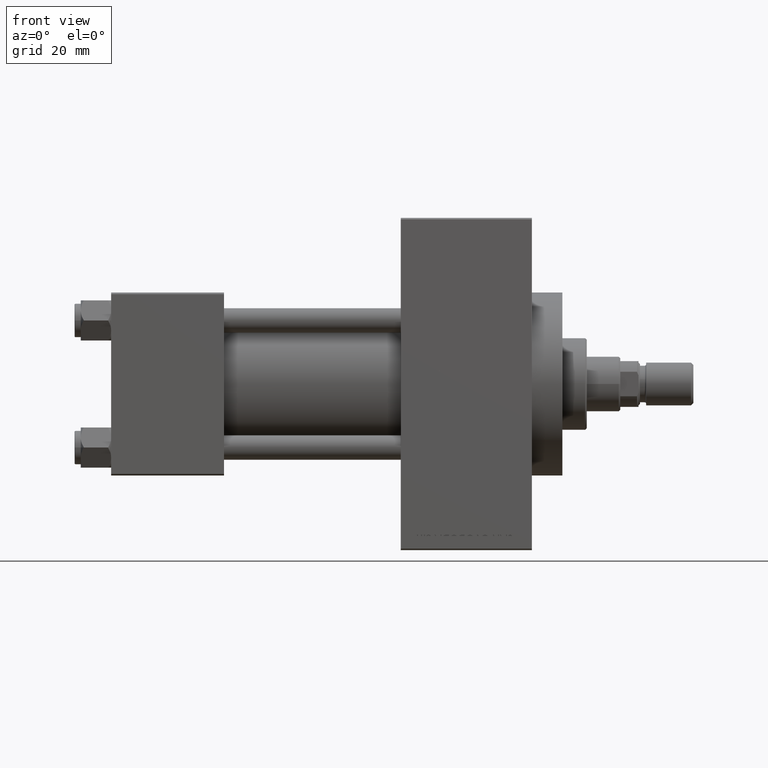
[diagram: clean part render]
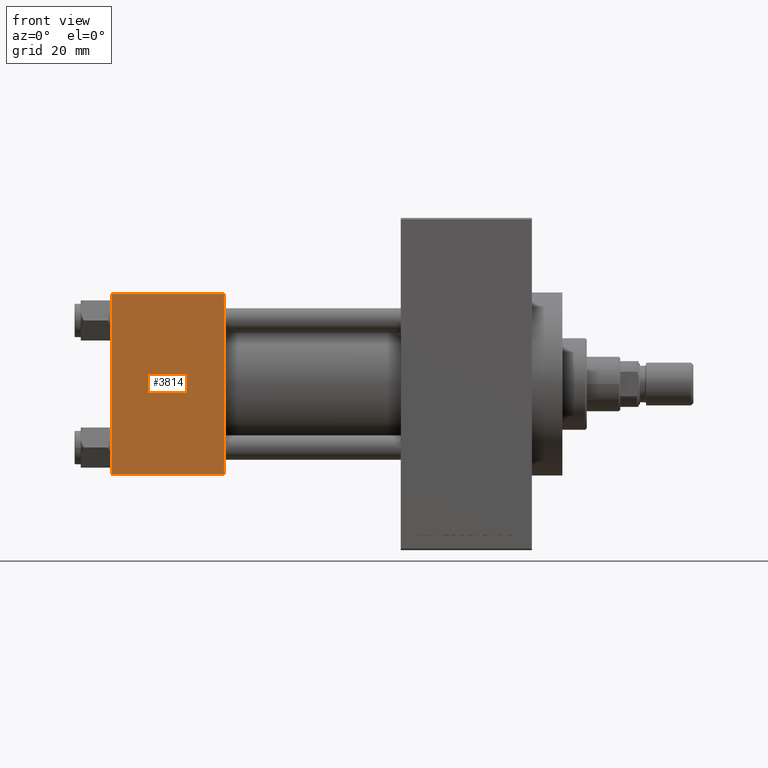
[diagram: same view with one face highlighted and labeled with its STEP entity id]
A machine part, front view. The second image highlights one B-rep face of the part: STEP entity #3814.
In plain terms, the highlighted planar face has unit normal (0, 1, 0).
Its self-contained STEP definition (entity closure, byte-faithful):
#258 = DIRECTION ( 'NONE',  ( -1.000000000000000000, 0.000000000000000000, 0.000000000000000000 ) ) ;
#505 = LINE ( 'NONE', #7554, #16439 ) ;
#882 = FACE_OUTER_BOUND ( 'NONE', #25980, .T. ) ;
#3299 = EDGE_CURVE ( 'NONE', #3657, #8352, #31544, .T. ) ;
#3657 = VERTEX_POINT ( 'NONE', #38416 ) ;
#3814 = ADVANCED_FACE ( 'NONE', ( #882 ), #12951, .F. ) ;
#4149 = CARTESIAN_POINT ( 'NONE',  ( 37.00000000000000000, -30.00000000000000000, 29.99999999999999289 ) ) ;
#4774 = ORIENTED_EDGE ( 'NONE', *, *, #34051, .T. ) ;
#5133 = ORIENTED_EDGE ( 'NONE', *, *, #45978, .T. ) ;
#6254 = AXIS2_PLACEMENT_3D ( 'NONE', #43912, #24274, #35872 ) ;
#7554 = CARTESIAN_POINT ( 'NONE',  ( 37.00000000000000000, -30.00000000000000000, 29.49999999999999289 ) ) ;
#8352 = VERTEX_POINT ( 'NONE', #12386 ) ;
#8381 = CARTESIAN_POINT ( 'NONE',  ( 0.000000000000000000, -30.00000000000000000, 29.49999999999999289 ) ) ;
#9601 = CARTESIAN_POINT ( 'NONE',  ( 37.00000000000000000, -30.00000000000000000, -29.50000000000001776 ) ) ;
#11936 = LINE ( 'NONE', #4149, #22043 ) ;
#12218 = CARTESIAN_POINT ( 'NONE',  ( 0.000000000000000000, -30.00000000000000000, 29.99999999999999289 ) ) ;
#12386 = CARTESIAN_POINT ( 'NONE',  ( 37.00000000000000000, -30.00000000000000000, -29.50000000000001776 ) ) ;
#12951 = PLANE ( 'NONE',  #6254 ) ;
#15755 = LINE ( 'NONE', #12218, #46785 ) ;
#16439 = VECTOR ( 'NONE', #258, 1000.000000000000000 ) ;
#16663 = DIRECTION ( 'NONE',  ( 1.000000000000000000, 0.000000000000000000, 0.000000000000000000 ) ) ;
#22043 = VECTOR ( 'NONE', #26124, 1000.000000000000000 ) ;
#24274 = DIRECTION ( 'NONE',  ( -0.000000000000000000, 1.000000000000000000, 0.000000000000000000 ) ) ;
#25980 = EDGE_LOOP ( 'NONE', ( #4774, #29373, #43178, #5133 ) ) ;
#26124 = DIRECTION ( 'NONE',  ( 0.000000000000000000, 0.000000000000000000, -1.000000000000000000 ) ) ;
#29373 = ORIENTED_EDGE ( 'NONE', *, *, #3299, .T. ) ;
#31049 = VERTEX_POINT ( 'NONE', #8381 ) ;
#31120 = DIRECTION ( 'NONE',  ( 0.000000000000000000, 0.000000000000000000, -1.000000000000000000 ) ) ;
#31544 = LINE ( 'NONE', #9601, #41618 ) ;
#34051 = EDGE_CURVE ( 'NONE', #31049, #3657, #15755, .T. ) ;
#35872 = DIRECTION ( 'NONE',  ( 0.000000000000000000, -0.000000000000000000, 1.000000000000000000 ) ) ;
#38416 = CARTESIAN_POINT ( 'NONE',  ( 0.000000000000000000, -30.00000000000000000, -29.50000000000001776 ) ) ;
#39842 = CARTESIAN_POINT ( 'NONE',  ( 37.00000000000000000, -30.00000000000000000, 29.49999999999999289 ) ) ;
#41618 = VECTOR ( 'NONE', #16663, 1000.000000000000000 ) ;
#43178 = ORIENTED_EDGE ( 'NONE', *, *, #44292, .F. ) ;
#43912 = CARTESIAN_POINT ( 'NONE',  ( 37.00000000000000000, -30.00000000000000000, 29.99999999999999289 ) ) ;
#44292 = EDGE_CURVE ( 'NONE', #47799, #8352, #11936, .T. ) ;
#45978 = EDGE_CURVE ( 'NONE', #47799, #31049, #505, .T. ) ;
#46785 = VECTOR ( 'NONE', #31120, 1000.000000000000000 ) ;
#47799 = VERTEX_POINT ( 'NONE', #39842 ) ;